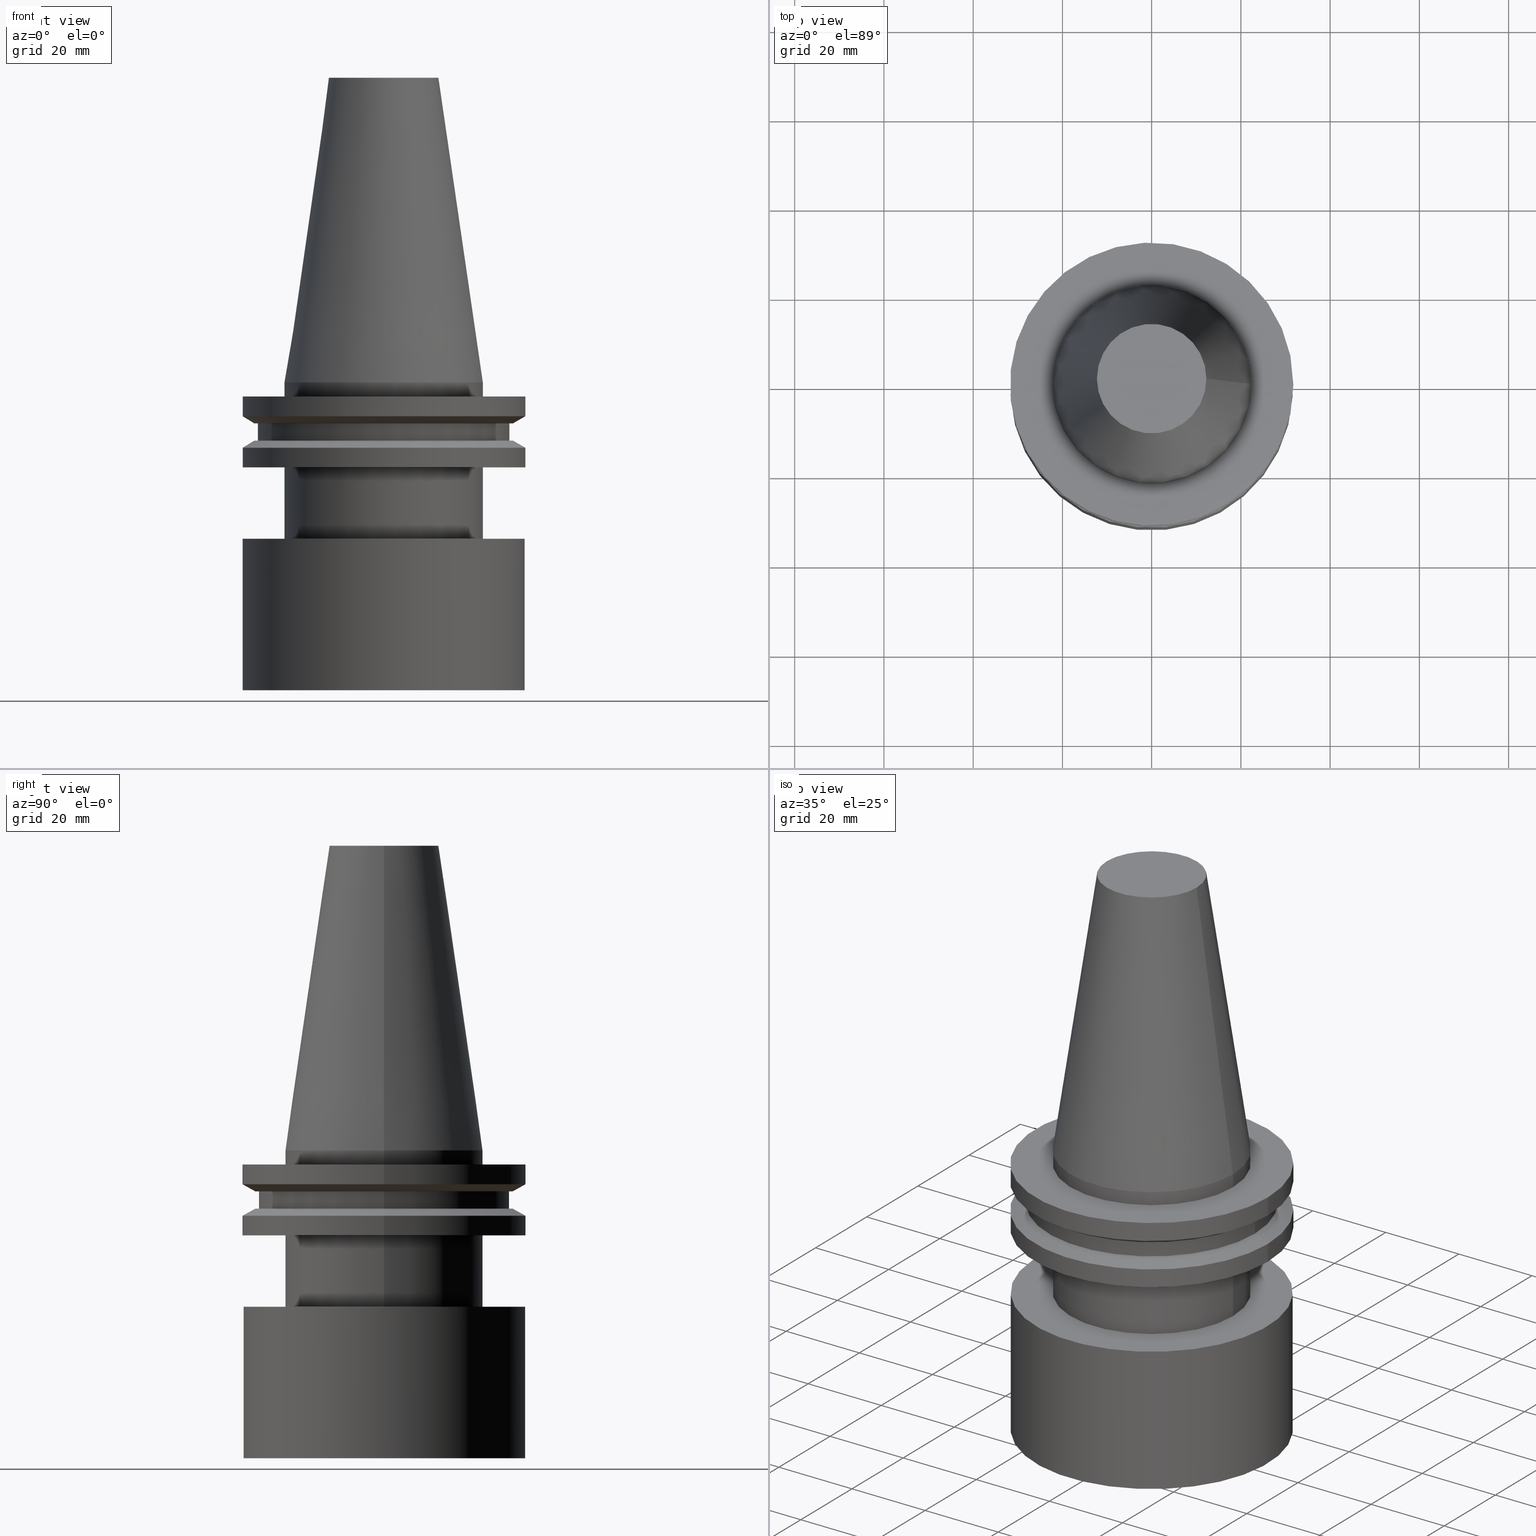
[diagram: canonical four-view strip — front | top / right | iso, engineering-drawing reading convention]
A machine part, canonical four-view strip (front | top / right | iso — engineering-drawing reading convention). The complete STEP part file that produces these views, byte-faithful:
ISO-10303-21;
HEADER;
FILE_DESCRIPTION (( 'STEP AP203' ),
    '1' );
FILE_NAME ('11.368.462.stp',
    '2022-03-09T15:13:42',
    ( '' ),
    ( '' ),
    'SwSTEP 2.0',
    'SolidWorks 2021',
    '' );
FILE_SCHEMA (( 'CONFIG_CONTROL_DESIGN' ));
ENDSEC;

DATA;
#1 = ADVANCED_FACE ( 'NONE', ( #374, #93 ), #371, .T. ) ;
#2 = CARTESIAN_POINT ( 'NONE',  ( 22.22500000000000142, 0.000000000000000000, -3.174999999999997158 ) ) ;
#3 = PERSON_AND_ORGANIZATION ( #183, #34 ) ;
#4 = ORIENTED_EDGE ( 'NONE', *, *, #39, .T. ) ;
#5 = DIRECTION ( 'NONE',  ( 1.000000000000000000, 0.000000000000000000, 0.000000000000000000 ) ) ;
#6 = APPROVAL_DATE_TIME ( #150, #163 ) ;
#7 = ORIENTED_EDGE ( 'NONE', *, *, #78, .T. ) ;
#8 = EDGE_LOOP ( 'NONE', ( #359 ) ) ;
#9 = AXIS2_PLACEMENT_3D ( 'NONE', #103, #349, #352 ) ;
#10 = ORIENTED_EDGE ( 'NONE', *, *, #289, .F. ) ;
#11 = FACE_OUTER_BOUND ( 'NONE', #192, .T. ) ;
#12 = CARTESIAN_POINT ( 'NONE',  ( 31.74999999999999289, 0.000000000000000000, -19.04999999999999716 ) ) ;
#13 = CARTESIAN_POINT ( 'NONE',  ( 0.000000000000000000, 0.000000000000000000, 68.25000000000000000 ) ) ;
#14 = CC_DESIGN_PERSON_AND_ORGANIZATION_ASSIGNMENT ( #113, #365, ( #226 ) ) ;
#15 = CARTESIAN_POINT ( 'NONE',  ( 0.000000000000000000, 0.000000000000000000, -9.204999999999991189 ) ) ;
#16 = SECURITY_CLASSIFICATION ( '', '', #65 ) ;
#17 = DIRECTION ( 'NONE',  ( -0.000000000000000000, -0.000000000000000000, 1.000000000000000000 ) ) ;
#18 = CARTESIAN_POINT ( 'NONE',  ( 0.000000000000000000, 0.000000000000000000, -9.205000000000005400 ) ) ;
#19 = CARTESIAN_POINT ( 'NONE',  ( 12.27178102086201150, 0.000000000000000000, 68.25000000000000000 ) ) ;
#20 = ORIENTED_EDGE ( 'NONE', *, *, #388, .F. ) ;
#21 = AXIS2_PLACEMENT_3D ( 'NONE', #15, #169, #70 ) ;
#22 = FACE_OUTER_BOUND ( 'NONE', #82, .T. ) ;
#23 = APPROVAL ( #117, 'UNSPECIFIED' ) ;
#24 = CARTESIAN_POINT ( 'NONE',  ( 0.000000000000000000, 0.000000000000000000, -35.04999999999999716 ) ) ;
#25 = EDGE_CURVE ( 'NONE', #129, #129, #264, .T. ) ;
#26 = FACE_BOUND ( 'NONE', #288, .T. ) ;
#27 = PERSON_AND_ORGANIZATION ( #183, #34 ) ;
#28 = AXIS2_PLACEMENT_3D ( 'NONE', #280, #395, #254 ) ;
#29 = PERSON_AND_ORGANIZATION_ROLE ( 'classification_officer' ) ;
#30 = PLANE ( 'NONE',  #124 ) ;
#31 = COORDINATED_UNIVERSAL_TIME_OFFSET ( 6, 0, .BEHIND. ) ;
#32 = EDGE_LOOP ( 'NONE', ( #151 ) ) ;
#33 = CALENDAR_DATE ( 2022, 9, 3 ) ;
#34 = ORGANIZATION ( 'UNSPECIFIED', 'UNSPECIFIED', '' ) ;
#35 = PERSON_AND_ORGANIZATION_ROLE ( 'design_supplier' ) ;
#36 = CARTESIAN_POINT ( 'NONE',  ( 0.000000000000000000, 0.000000000000000000, -3.174999999999997158 ) ) ;
#37 = CARTESIAN_POINT ( 'NONE',  ( 0.000000000000000000, -9.062386313690410430E-15, -68.99999999999998579 ) ) ;
#38 = ORIENTED_EDGE ( 'NONE', *, *, #133, .T. ) ;
#39 = EDGE_CURVE ( 'NONE', #296, #296, #325, .T. ) ;
#40 = CYLINDRICAL_SURFACE ( 'NONE', #270, 31.63500000000000867 ) ;
#41 = VERTEX_POINT ( 'NONE', #162 ) ;
#42 = LOCAL_TIME ( 9, 13, 42.00000000000000000, #224 ) ;
#43 = DIRECTION ( 'NONE',  ( -0.000000000000000000, -0.000000000000000000, 1.000000000000000000 ) ) ;
#44 = EDGE_CURVE ( 'NONE', #46, #46, #107, .T. ) ;
#45 = FACE_OUTER_BOUND ( 'NONE', #8, .T. ) ;
#46 = VERTEX_POINT ( 'NONE', #385 ) ;
#47 = FACE_BOUND ( 'NONE', #303, .T. ) ;
#48 = CARTESIAN_POINT ( 'NONE',  ( 22.22500000000000142, 0.000000000000000000, 0.000000000000000000 ) ) ;
#49 = CC_DESIGN_PERSON_AND_ORGANIZATION_ASSIGNMENT ( #378, #373, ( #394 ) ) ;
#50 = CARTESIAN_POINT ( 'NONE',  ( 0.000000000000000000, 1.127050637003671691E-30, -35.04999999999999005 ) ) ;
#51 = LOCAL_TIME ( 9, 13, 42.00000000000000000, #31 ) ;
#52 = DIRECTION ( 'NONE',  ( -0.000000000000000000, -0.000000000000000000, 1.000000000000000000 ) ) ;
#53 = EDGE_CURVE ( 'NONE', #102, #102, #335, .T. ) ;
#54 = CARTESIAN_POINT ( 'NONE',  ( 0.000000000000000000, 28.97919780457007732, -9.204999999999996518 ) ) ;
#55 = ORIENTED_EDGE ( 'NONE', *, *, #388, .T. ) ;
#56 = CONICAL_SURFACE ( 'NONE', #9, 31.75000000000000000, 1.047197551196597853 ) ;
#57 = ADVANCED_FACE ( 'NONE', ( #234, #345 ), #386, .F. ) ;
#58 = ORIENTED_EDGE ( 'NONE', *, *, #240, .F. ) ;
#59 = DATE_AND_TIME ( #156, #329 ) ;
#60 = DIRECTION ( 'NONE',  ( -1.000000000000000000, 0.000000000000000000, 0.000000000000000000 ) ) ;
#61 = APPROVAL_ROLE ( '' ) ;
#62 = ORIENTED_EDGE ( 'NONE', *, *, #370, .T. ) ;
#63 = AXIS2_PLACEMENT_3D ( 'NONE', #18, #244, #219 ) ;
#64 = ADVANCED_FACE ( 'NONE', ( #11, #130 ), #164, .T. ) ;
#65 = SECURITY_CLASSIFICATION_LEVEL ( 'unclassified' ) ;
#66 = EDGE_LOOP ( 'NONE', ( #58 ) ) ;
#67 = MANIFOLD_SOLID_BREP ( 'CKB', #92 ) ;
#68 = CARTESIAN_POINT ( 'NONE',  ( 0.000000000000000000, 0.000000000000000000, -19.04999999999999716 ) ) ;
#69 = AXIS2_PLACEMENT_3D ( 'NONE', #216, #80, #115 ) ;
#70 = DIRECTION ( 'NONE',  ( 1.000000000000000000, 0.000000000000000000, 0.000000000000000000 ) ) ;
#71 = DIRECTION ( 'NONE',  ( 0.000000000000000000, 0.000000000000000000, -1.000000000000000000 ) ) ;
#72 = VERTEX_POINT ( 'NONE', #100 ) ;
#73 = FACE_OUTER_BOUND ( 'NONE', #125, .T. ) ;
#74 = DIRECTION ( 'NONE',  ( -0.000000000000000000, -0.000000000000000000, 1.000000000000000000 ) ) ;
#75 = CIRCLE ( 'NONE', #69, 22.22500000000000142 ) ;
#76 = AXIS2_PLACEMENT_3D ( 'NONE', #37, #121, #259 ) ;
#77 = DIRECTION ( 'NONE',  ( 1.000000000000000000, 0.000000000000000000, 0.000000000000000000 ) ) ;
#78 = EDGE_CURVE ( 'NONE', #350, #350, #281, .T. ) ;
#79 = DIRECTION ( 'NONE',  ( 0.000000000000000000, -1.000000000000000000, 2.669333229363891004E-16 ) ) ;
#80 = DIRECTION ( 'NONE',  ( -0.000000000000000000, -0.000000000000000000, 1.000000000000000000 ) ) ;
#81 = APPLICATION_PROTOCOL_DEFINITION ( 'international standard', 'config_control_design', 1994, #131 ) ;
#82 = EDGE_LOOP ( 'NONE', ( #225 ) ) ;
#83 = DIRECTION ( 'NONE',  ( -0.000000000000000000, -0.000000000000000000, 1.000000000000000000 ) ) ;
#84 = VERTEX_POINT ( 'NONE', #48 ) ;
#85 = CARTESIAN_POINT ( 'NONE',  ( 0.000000000000000000, 28.17999999999999972, -13.05499999999999794 ) ) ;
#86 = APPLICATION_PROTOCOL_DEFINITION ( 'international standard', 'config_control_design', 1994, #232 ) ;
#87 = PLANE ( 'NONE',  #250 ) ;
#88 = VERTEX_POINT ( 'NONE', #327 ) ;
#89 = ORIENTED_EDGE ( 'NONE', *, *, #116, .T. ) ;
#90 = ADVANCED_FACE ( 'NONE', ( #207, #238 ), #56, .T. ) ;
#91 = ORIENTED_EDGE ( 'NONE', *, *, #116, .F. ) ;
#92 = CLOSED_SHELL ( 'NONE', ( #1, #263, #209, #367, #154, #90, #283, #353, #247, #126, #346, #57, #64, #241, #147, #158 ) ) ;
#93 = FACE_OUTER_BOUND ( 'NONE', #291, .T. ) ;
#94 = EDGE_LOOP ( 'NONE', ( #313 ) ) ;
#95 = COORDINATED_UNIVERSAL_TIME_OFFSET ( 6, 0, .BEHIND. ) ;
#96 = EDGE_LOOP ( 'NONE', ( #4 ) ) ;
#97 = AXIS2_PLACEMENT_3D ( 'NONE', #382, #368, #112 ) ;
#98 = APPROVAL_STATUS ( 'not_yet_approved' ) ;
#99 = DIRECTION ( 'NONE',  ( -0.000000000000000000, -0.000000000000000000, 1.000000000000000000 ) ) ;
#100 = CARTESIAN_POINT ( 'NONE',  ( 28.17999999999999972, 0.000000000000000000, -9.204999999999991189 ) ) ;
#101 = AXIS2_PLACEMENT_3D ( 'NONE', #24, #175, #391 ) ;
#102 = VERTEX_POINT ( 'NONE', #172 ) ;
#103 = CARTESIAN_POINT ( 'NONE',  ( 0.000000000000000000, 0.000000000000000000, -14.65472339340266572 ) ) ;
#104 = EDGE_CURVE ( 'NONE', #266, #266, #146, .T. ) ;
#105 = CARTESIAN_POINT ( 'NONE',  ( 0.000000000000000000, 0.000000000000000000, -9.205000000000005400 ) ) ;
#106 = AXIS2_PLACEMENT_3D ( 'NONE', #54, #173, #305 ) ;
#107 = CIRCLE ( 'NONE', #76, 31.63500000000000867 ) ;
#108 = VERTEX_POINT ( 'NONE', #19 ) ;
#109 = FACE_OUTER_BOUND ( 'NONE', #369, .T. ) ;
#110 = DIRECTION ( 'NONE',  ( 0.000000000000000000, 1.000000000000000000, -2.193423076942382468E-16 ) ) ;
#111 = CARTESIAN_POINT ( 'NONE',  ( 0.000000000000000000, 0.000000000000000000, 0.000000000000000000 ) ) ;
#112 = DIRECTION ( 'NONE',  ( 0.000000000000000000, 1.000000000000000000, -2.669333229363891004E-16 ) ) ;
#113 = PERSON_AND_ORGANIZATION ( #183, #34 ) ;
#114 = EDGE_LOOP ( 'NONE', ( #285 ) ) ;
#115 = DIRECTION ( 'NONE',  ( 1.000000000000000000, 0.000000000000000000, 0.000000000000000000 ) ) ;
#116 = EDGE_CURVE ( 'NONE', #322, #322, #390, .T. ) ;
#117 = APPROVAL_STATUS ( 'not_yet_approved' ) ;
#118 = ORIENTED_EDGE ( 'NONE', *, *, #203, .T. ) ;
#119 = APPROVAL_PERSON_ORGANIZATION ( #27, #223, #144 ) ;
#120 = PERSON_AND_ORGANIZATION ( #183, #34 ) ;
#121 = DIRECTION ( 'NONE',  ( -0.000000000000000000, -2.669333229363891004E-16, -1.000000000000000000 ) ) ;
#122 = EDGE_LOOP ( 'NONE', ( #91 ) ) ;
#123 = EDGE_LOOP ( 'NONE', ( #62 ) ) ;
#124 = AXIS2_PLACEMENT_3D ( 'NONE', #237, #165, #204 ) ;
#125 = EDGE_LOOP ( 'NONE', ( #337 ) ) ;
#126 = ADVANCED_FACE ( 'NONE', ( #383, #171 ), #320, .T. ) ;
#127 = FACE_OUTER_BOUND ( 'NONE', #185, .T. ) ;
#128 = CARTESIAN_POINT ( 'NONE',  ( 0.000000000000000000, 0.000000000000000000, -19.04999999999999716 ) ) ;
#129 = VERTEX_POINT ( 'NONE', #208 ) ;
#130 = FACE_OUTER_BOUND ( 'NONE', #123, .T. ) ;
#131 = APPLICATION_CONTEXT ( 'configuration controlled 3d designs of mechanical parts and assemblies' ) ;
#132 = DIRECTION ( 'NONE',  ( 0.000000000000000000, 1.000000000000000000, -4.386846153884764444E-16 ) ) ;
#133 = EDGE_CURVE ( 'NONE', #72, #72, #275, .T. ) ;
#134 = CARTESIAN_POINT ( 'NONE',  ( 28.17999999999999972, 0.000000000000000000, -13.05499999999999794 ) ) ;
#135 = FACE_OUTER_BOUND ( 'NONE', #122, .T. ) ;
#136 =( NAMED_UNIT ( * ) PLANE_ANGLE_UNIT ( ) SI_UNIT ( $, .RADIAN. ) );
#137 = CARTESIAN_POINT ( 'NONE',  ( 0.000000000000000000, 12.27178102086201150, 68.25000000000000000 ) ) ;
#138 = AXIS2_PLACEMENT_3D ( 'NONE', #137, #364, #358 ) ;
#139 = ORIENTED_EDGE ( 'NONE', *, *, #104, .T. ) ;
#140 = CARTESIAN_POINT ( 'NONE',  ( 0.000000000000000000, 0.000000000000000000, 68.25000000000000000 ) ) ;
#141 = FACE_OUTER_BOUND ( 'NONE', #94, .T. ) ;
#142 = EDGE_LOOP ( 'NONE', ( #139 ) ) ;
#143 = FACE_OUTER_BOUND ( 'NONE', #155, .T. ) ;
#144 = APPROVAL_ROLE ( '' ) ;
#145 = APPROVAL_PERSON_ORGANIZATION ( #187, #163, #284 ) ;
#146 = CIRCLE ( 'NONE', #293, 31.74999999999999289 ) ;
#147 = ADVANCED_FACE ( 'NONE', ( #45, #73 ), #40, .T. ) ;
#148 = DIRECTION ( 'NONE',  ( 1.000000000000000000, 0.000000000000000000, 0.000000000000000000 ) ) ;
#149 = CALENDAR_DATE ( 2022, 9, 3 ) ;
#150 = DATE_AND_TIME ( #341, #51 ) ;
#151 = ORIENTED_EDGE ( 'NONE', *, *, #289, .T. ) ;
#152 = SHAPE_DEFINITION_REPRESENTATION ( #351, #235 ) ;
#153 = DIRECTION ( 'NONE',  ( 1.000000000000000000, 0.000000000000000000, 0.000000000000000000 ) ) ;
#154 = ADVANCED_FACE ( 'NONE', ( #135, #272 ), #242, .T. ) ;
#155 = EDGE_LOOP ( 'NONE', ( #227 ) ) ;
#156 = CALENDAR_DATE ( 2022, 9, 3 ) ;
#157 = DIRECTION ( 'NONE',  ( -0.000000000000000000, -0.000000000000000000, 1.000000000000000000 ) ) ;
#158 = ADVANCED_FACE ( 'NONE', ( #127 ), #267, .T. ) ;
#159 = EDGE_LOOP ( 'NONE', ( #342 ) ) ;
#160 = LOCAL_TIME ( 9, 13, 42.00000000000000000, #228 ) ;
#161 = CARTESIAN_POINT ( 'NONE',  ( 0.000000000000000000, 0.000000000000000000, 68.25000000000000000 ) ) ;
#162 = CARTESIAN_POINT ( 'NONE',  ( 0.000000000000000000, 31.63500000000000512, -35.04999999999999716 ) ) ;
#163 = APPROVAL ( #98, 'UNSPECIFIED' ) ;
#164 = CYLINDRICAL_SURFACE ( 'NONE', #231, 22.22500000000000142 ) ;
#165 = DIRECTION ( 'NONE',  ( 0.000000000000000000, -0.000000000000000000, 1.000000000000000000 ) ) ;
#166 = DIRECTION ( 'NONE',  ( -0.000000000000000000, -0.000000000000000000, 1.000000000000000000 ) ) ;
#167 = CC_DESIGN_APPROVAL ( #223, ( #282 ) ) ;
#168 = AXIS2_PLACEMENT_3D ( 'NONE', #286, #99, #5 ) ;
#169 = DIRECTION ( 'NONE',  ( -0.000000000000000000, -0.000000000000000000, 1.000000000000000000 ) ) ;
#170 = CARTESIAN_POINT ( 'NONE',  ( 0.000000000000000000, 0.000000000000000000, -3.174999999999997158 ) ) ;
#171 = FACE_BOUND ( 'NONE', #380, .T. ) ;
#172 = CARTESIAN_POINT ( 'NONE',  ( 31.75000000000000000, 0.000000000000000000, -3.174999999999997158 ) ) ;
#173 = DIRECTION ( 'NONE',  ( 0.000000000000000000, -0.000000000000000000, 1.000000000000000000 ) ) ;
#174 = AXIS2_PLACEMENT_3D ( 'NONE', #355, #17, #77 ) ;
#175 = DIRECTION ( 'NONE',  ( -0.000000000000000000, -0.000000000000000000, 1.000000000000000000 ) ) ;
#176 = PLANE ( 'NONE',  #138 ) ;
#177 = ORIENTED_EDGE ( 'NONE', *, *, #25, .T. ) ;
#178 = PLANE ( 'NONE',  #106 ) ;
#179 = VERTEX_POINT ( 'NONE', #2 ) ;
#180 = APPROVAL_PERSON_ORGANIZATION ( #120, #23, #61 ) ;
#181 = AXIS2_PLACEMENT_3D ( 'NONE', #128, #74, #239 ) ;
#182 = FACE_OUTER_BOUND ( 'NONE', #246, .T. ) ;
#183 = PERSON ( 'UNSPECIFIED', 'UNSPECIFIED', 'UNSPECIFIED', ('UNSPECIFIED'), ('UNSPECIFIED'), ('UNSPECIFIED') ) ;
#184 = DATE_AND_TIME ( #149, #160 ) ;
#185 = EDGE_LOOP ( 'NONE', ( #311 ) ) ;
#186 = CC_DESIGN_PERSON_AND_ORGANIZATION_ASSIGNMENT ( #338, #310, ( #282 ) ) ;
#187 = PERSON_AND_ORGANIZATION ( #183, #34 ) ;
#188 = CARTESIAN_POINT ( 'NONE',  ( 0.000000000000000000, 0.000000000000000000, -13.05499999999999794 ) ) ;
#189 = DATE_AND_TIME ( #33, #42 ) ;
#190 = ORIENTED_EDGE ( 'NONE', *, *, #317, .F. ) ;
#191 =( GEOMETRIC_REPRESENTATION_CONTEXT ( 3 ) GLOBAL_UNCERTAINTY_ASSIGNED_CONTEXT ( ( #193 ) ) GLOBAL_UNIT_ASSIGNED_CONTEXT ( ( #217, #136, #302 ) ) REPRESENTATION_CONTEXT ( 'NONE', 'WORKASPACE' ) );
#192 = EDGE_LOOP ( 'NONE', ( #190 ) ) ;
#193 = UNCERTAINTY_MEASURE_WITH_UNIT (LENGTH_MEASURE( 1.000000000000000082E-05 ), #217, 'distance_accuracy_value', 'NONE');
#194 = DATE_TIME_ROLE ( 'classification_date' ) ;
#195 = EDGE_LOOP ( 'NONE', ( #316 ) ) ;
#196 = DIRECTION ( 'NONE',  ( -0.000000000000000000, -0.000000000000000000, 1.000000000000000000 ) ) ;
#197 = VERTEX_POINT ( 'NONE', #319 ) ;
#198 = CIRCLE ( 'NONE', #297, 31.63500000000000512 ) ;
#199 = AXIS2_PLACEMENT_3D ( 'NONE', #105, #318, #323 ) ;
#200 = DIRECTION ( 'NONE',  ( -0.000000000000000000, -0.000000000000000000, 1.000000000000000000 ) ) ;
#201 = DIRECTION ( 'NONE',  ( 1.000000000000000000, 0.000000000000000000, 0.000000000000000000 ) ) ;
#202 = CARTESIAN_POINT ( 'NONE',  ( 0.000000000000000000, 0.000000000000000000, -14.65472339340266572 ) ) ;
#203 = EDGE_CURVE ( 'NONE', #197, #197, #334, .T. ) ;
#204 = DIRECTION ( 'NONE',  ( 1.000000000000000000, 0.000000000000000000, 0.000000000000000000 ) ) ;
#205 = AXIS2_PLACEMENT_3D ( 'NONE', #279, #326, #148 ) ;
#206 = AXIS2_PLACEMENT_3D ( 'NONE', #36, #157, #290 ) ;
#207 = FACE_BOUND ( 'NONE', #114, .T. ) ;
#208 = CARTESIAN_POINT ( 'NONE',  ( 28.97919780457008088, 0.000000000000000000, -13.05499999999999794 ) ) ;
#209 = ADVANCED_FACE ( 'NONE', ( #251, #277 ), #333, .T. ) ;
#210 = DIRECTION ( 'NONE',  ( 1.000000000000000000, 0.000000000000000000, 0.000000000000000000 ) ) ;
#211 = EDGE_LOOP ( 'NONE', ( #7 ) ) ;
#212 = PRODUCT_RELATED_PRODUCT_CATEGORY ( 'detail', '', ( #226 ) ) ;
#213 = FACE_OUTER_BOUND ( 'NONE', #96, .T. ) ;
#214 = CIRCLE ( 'NONE', #101, 22.22499999999999787 ) ;
#215 = MECHANICAL_CONTEXT ( 'NONE', #131, 'mechanical' ) ;
#216 = CARTESIAN_POINT ( 'NONE',  ( 0.000000000000000000, 0.000000000000000000, 0.000000000000000000 ) ) ;
#217 =( LENGTH_UNIT ( ) NAMED_UNIT ( * ) SI_UNIT ( .MILLI., .METRE. ) );
#218 = EDGE_LOOP ( 'NONE', ( #10 ) ) ;
#219 = DIRECTION ( 'NONE',  ( 1.000000000000000000, 0.000000000000000000, 0.000000000000000000 ) ) ;
#220 = CC_DESIGN_SECURITY_CLASSIFICATION ( #16, ( #394 ) ) ;
#221 = ORIENTED_EDGE ( 'NONE', *, *, #78, .F. ) ;
#222 = AXIS2_PLACEMENT_3D ( 'NONE', #202, #196, #347 ) ;
#223 = APPROVAL ( #332, 'UNSPECIFIED' ) ;
#224 = COORDINATED_UNIVERSAL_TIME_OFFSET ( 6, 0, .BEHIND. ) ;
#225 = ORIENTED_EDGE ( 'NONE', *, *, #278, .T. ) ;
#226 = PRODUCT ( '11.368.462', '11.368.462', '', ( #215 ) ) ;
#227 = ORIENTED_EDGE ( 'NONE', *, *, #133, .F. ) ;
#228 = COORDINATED_UNIVERSAL_TIME_OFFSET ( 6, 0, .BEHIND. ) ;
#229 = EDGE_LOOP ( 'NONE', ( #55 ) ) ;
#230 = AXIS2_PLACEMENT_3D ( 'NONE', #161, #273, #294 ) ;
#231 = AXIS2_PLACEMENT_3D ( 'NONE', #13, #200, #271 ) ;
#232 = APPLICATION_CONTEXT ( 'configuration controlled 3d designs of mechanical parts and assemblies' ) ;
#233 = DATE_TIME_ROLE ( 'creation_date' ) ;
#234 = FACE_BOUND ( 'NONE', #159, .T. ) ;
#235 = ADVANCED_BREP_SHAPE_REPRESENTATION ( '11.368.462', ( #67, #377 ), #191 ) ;
#236 = CARTESIAN_POINT ( 'NONE',  ( 0.000000000000000000, 31.75000000000000000, -3.174999999999999378 ) ) ;
#237 = CARTESIAN_POINT ( 'NONE',  ( 0.000000000000000000, 31.74999999999999289, -19.04999999999999716 ) ) ;
#238 = FACE_OUTER_BOUND ( 'NONE', #258, .T. ) ;
#239 = DIRECTION ( 'NONE',  ( 1.000000000000000000, 0.000000000000000000, 0.000000000000000000 ) ) ;
#240 = EDGE_CURVE ( 'NONE', #41, #41, #198, .T. ) ;
#241 = ADVANCED_FACE ( 'NONE', ( #393, #328 ), #307, .T. ) ;
#242 = CYLINDRICAL_SURFACE ( 'NONE', #230, 31.75000000000000000 ) ;
#243 = AXIS2_PLACEMENT_3D ( 'NONE', #188, #262, #153 ) ;
#244 = DIRECTION ( 'NONE',  ( -0.000000000000000000, -0.000000000000000000, 1.000000000000000000 ) ) ;
#245 = DIRECTION ( 'NONE',  ( 0.000000000000000000, 2.669333229363891004E-16, 1.000000000000000000 ) ) ;
#246 = EDGE_LOOP ( 'NONE', ( #339 ) ) ;
#247 = ADVANCED_FACE ( 'NONE', ( #109, #26 ), #178, .F. ) ;
#248 = FACE_OUTER_BOUND ( 'NONE', #229, .T. ) ;
#249 = DIRECTION ( 'NONE',  ( 0.000000000000000000, 0.000000000000000000, 1.000000000000000000 ) ) ;
#250 = AXIS2_PLACEMENT_3D ( 'NONE', #85, #330, #276 ) ;
#251 = FACE_OUTER_BOUND ( 'NONE', #379, .T. ) ;
#252 = AXIS2_PLACEMENT_3D ( 'NONE', #140, #83, #331 ) ;
#253 = ORIENTED_EDGE ( 'NONE', *, *, #317, .T. ) ;
#254 = DIRECTION ( 'NONE',  ( 1.000000000000000000, 0.000000000000000000, 0.000000000000000000 ) ) ;
#255 = CARTESIAN_POINT ( 'NONE',  ( 31.75000000000000000, 0.000000000000000000, -7.605276606597335842 ) ) ;
#256 = APPROVAL_DATE_TIME ( #189, #23 ) ;
#257 = PERSON_AND_ORGANIZATION ( #183, #34 ) ;
#258 = EDGE_LOOP ( 'NONE', ( #89 ) ) ;
#259 = DIRECTION ( 'NONE',  ( 0.000000000000000000, 1.000000000000000000, -4.386846153884764444E-16 ) ) ;
#260 = ORIENTED_EDGE ( 'NONE', *, *, #39, .F. ) ;
#261 = CALENDAR_DATE ( 2022, 9, 3 ) ;
#262 = DIRECTION ( 'NONE',  ( -0.000000000000000000, -0.000000000000000000, 1.000000000000000000 ) ) ;
#263 = ADVANCED_FACE ( 'NONE', ( #248 ), #176, .F. ) ;
#264 = CIRCLE ( 'NONE', #243, 28.97919780457008088 ) ;
#265 = EDGE_LOOP ( 'NONE', ( #177 ) ) ;
#266 = VERTEX_POINT ( 'NONE', #12 ) ;
#267 = PLANE ( 'NONE',  #97 ) ;
#268 = VERTEX_POINT ( 'NONE', #255 ) ;
#269 = DIRECTION ( 'NONE',  ( 1.000000000000000000, 0.000000000000000000, 0.000000000000000000 ) ) ;
#270 = AXIS2_PLACEMENT_3D ( 'NONE', #354, #324, #132 ) ;
#271 = DIRECTION ( 'NONE',  ( 1.000000000000000000, 0.000000000000000000, 0.000000000000000000 ) ) ;
#272 = FACE_OUTER_BOUND ( 'NONE', #142, .T. ) ;
#273 = DIRECTION ( 'NONE',  ( -0.000000000000000000, -0.000000000000000000, 1.000000000000000000 ) ) ;
#274 = AXIS2_PLACEMENT_3D ( 'NONE', #357, #52, #210 ) ;
#275 = CIRCLE ( 'NONE', #21, 28.17999999999999972 ) ;
#276 = DIRECTION ( 'NONE',  ( -1.000000000000000000, 0.000000000000000000, -0.000000000000000000 ) ) ;
#277 = FACE_OUTER_BOUND ( 'NONE', #32, .T. ) ;
#278 = EDGE_CURVE ( 'NONE', #268, #268, #363, .T. ) ;
#279 = CARTESIAN_POINT ( 'NONE',  ( 0.000000000000000000, 0.000000000000000000, -7.605276606597335842 ) ) ;
#280 = CARTESIAN_POINT ( 'NONE',  ( 0.000000000000000000, 0.000000000000000000, 68.25000000000000000 ) ) ;
#281 = CIRCLE ( 'NONE', #181, 22.22500000000000142 ) ;
#282 = PRODUCT_DEFINITION ( 'UNKNOWN', '', #394, #340 ) ;
#283 = ADVANCED_FACE ( 'NONE', ( #47, #301 ), #87, .F. ) ;
#284 = APPROVAL_ROLE ( '' ) ;
#285 = ORIENTED_EDGE ( 'NONE', *, *, #25, .F. ) ;
#286 = CARTESIAN_POINT ( 'NONE',  ( 0.000000000000000000, 0.000000000000000000, -13.05499999999999794 ) ) ;
#287 = COORDINATED_UNIVERSAL_TIME_OFFSET ( 6, 0, .BEHIND. ) ;
#288 = EDGE_LOOP ( 'NONE', ( #38 ) ) ;
#289 = EDGE_CURVE ( 'NONE', #88, #88, #214, .T. ) ;
#290 = DIRECTION ( 'NONE',  ( 1.000000000000000000, 0.000000000000000000, 0.000000000000000000 ) ) ;
#291 = EDGE_LOOP ( 'NONE', ( #253 ) ) ;
#292 = CC_DESIGN_APPROVAL ( #23, ( #16 ) ) ;
#293 = AXIS2_PLACEMENT_3D ( 'NONE', #68, #166, #269 ) ;
#294 = DIRECTION ( 'NONE',  ( 1.000000000000000000, 0.000000000000000000, 0.000000000000000000 ) ) ;
#295 = CC_DESIGN_DATE_AND_TIME_ASSIGNMENT ( #59, #194, ( #16 ) ) ;
#296 = VERTEX_POINT ( 'NONE', #134 ) ;
#297 = AXIS2_PLACEMENT_3D ( 'NONE', #392, #387, #110 ) ;
#298 = AXIS2_PLACEMENT_3D ( 'NONE', #344, #372, #60 ) ;
#299 = CARTESIAN_POINT ( 'NONE',  ( 22.22500000000000142, 0.000000000000000000, -19.04999999999999716 ) ) ;
#300 = CC_DESIGN_DATE_AND_TIME_ASSIGNMENT ( #312, #233, ( #282 ) ) ;
#301 = FACE_OUTER_BOUND ( 'NONE', #265, .T. ) ;
#302 =( NAMED_UNIT ( * ) SI_UNIT ( $, .STERADIAN. ) SOLID_ANGLE_UNIT ( ) );
#303 = EDGE_LOOP ( 'NONE', ( #260 ) ) ;
#304 = AXIS2_PLACEMENT_3D ( 'NONE', #170, #43, #201 ) ;
#305 = DIRECTION ( 'NONE',  ( 1.000000000000000000, 0.000000000000000000, 0.000000000000000000 ) ) ;
#306 = CYLINDRICAL_SURFACE ( 'NONE', #28, 28.17999999999999972 ) ;
#307 = PLANE ( 'NONE',  #389 ) ;
#308 = AXIS2_PLACEMENT_3D ( 'NONE', #236, #71, #321 ) ;
#309 = FACE_BOUND ( 'NONE', #211, .T. ) ;
#310 = PERSON_AND_ORGANIZATION_ROLE ( 'creator' ) ;
#311 = ORIENTED_EDGE ( 'NONE', *, *, #44, .T. ) ;
#312 = DATE_AND_TIME ( #261, #384 ) ;
#313 = ORIENTED_EDGE ( 'NONE', *, *, #53, .F. ) ;
#314 = EDGE_LOOP ( 'NONE', ( #20 ) ) ;
#315 = ORIENTED_EDGE ( 'NONE', *, *, #203, .F. ) ;
#316 = ORIENTED_EDGE ( 'NONE', *, *, #53, .T. ) ;
#317 = EDGE_CURVE ( 'NONE', #84, #84, #75, .T. ) ;
#318 = DIRECTION ( 'NONE',  ( -0.000000000000000000, -0.000000000000000000, 1.000000000000000000 ) ) ;
#319 = CARTESIAN_POINT ( 'NONE',  ( 28.97919780457007732, 0.000000000000000000, -9.205000000000005400 ) ) ;
#320 = CONICAL_SURFACE ( 'NONE', #199, 28.97919780457007732, 1.047197551196598297 ) ;
#321 = DIRECTION ( 'NONE',  ( -1.000000000000000000, 0.000000000000000000, -0.000000000000000000 ) ) ;
#322 = VERTEX_POINT ( 'NONE', #381 ) ;
#323 = DIRECTION ( 'NONE',  ( 1.000000000000000000, 0.000000000000000000, 0.000000000000000000 ) ) ;
#324 = DIRECTION ( 'NONE',  ( -0.000000000000000000, -2.669333229363891004E-16, -1.000000000000000000 ) ) ;
#325 = CIRCLE ( 'NONE', #168, 28.17999999999999972 ) ;
#326 = DIRECTION ( 'NONE',  ( -0.000000000000000000, -0.000000000000000000, 1.000000000000000000 ) ) ;
#327 = CARTESIAN_POINT ( 'NONE',  ( 22.22499999999999787, 0.000000000000000000, -35.04999999999999716 ) ) ;
#328 = FACE_OUTER_BOUND ( 'NONE', #66, .T. ) ;
#329 = LOCAL_TIME ( 9, 13, 42.00000000000000000, #95 ) ;
#330 = DIRECTION ( 'NONE',  ( 0.000000000000000000, 0.000000000000000000, -1.000000000000000000 ) ) ;
#331 = DIRECTION ( 'NONE',  ( 1.000000000000000000, 0.000000000000000000, 0.000000000000000000 ) ) ;
#332 = APPROVAL_STATUS ( 'not_yet_approved' ) ;
#333 = CYLINDRICAL_SURFACE ( 'NONE', #274, 22.22500000000000142 ) ;
#334 = CIRCLE ( 'NONE', #63, 28.97919780457007732 ) ;
#335 = CIRCLE ( 'NONE', #206, 31.75000000000000000 ) ;
#336 = APPROVAL_DATE_TIME ( #184, #223 ) ;
#337 = ORIENTED_EDGE ( 'NONE', *, *, #44, .F. ) ;
#338 = PERSON_AND_ORGANIZATION ( #183, #34 ) ;
#339 = ORIENTED_EDGE ( 'NONE', *, *, #104, .F. ) ;
#340 = DESIGN_CONTEXT ( 'detailed design', #232, 'design' ) ;
#341 = CALENDAR_DATE ( 2022, 9, 3 ) ;
#342 = ORIENTED_EDGE ( 'NONE', *, *, #370, .F. ) ;
#343 = CIRCLE ( 'NONE', #304, 22.22500000000000142 ) ;
#344 = CARTESIAN_POINT ( 'NONE',  ( 0.000000000000000000, 0.000000000000000000, 0.000000000000000000 ) ) ;
#345 = FACE_OUTER_BOUND ( 'NONE', #195, .T. ) ;
#346 = ADVANCED_FACE ( 'NONE', ( #141, #22 ), #360, .T. ) ;
#347 = DIRECTION ( 'NONE',  ( 1.000000000000000000, 0.000000000000000000, 0.000000000000000000 ) ) ;
#348 = CC_DESIGN_APPROVAL ( #163, ( #394 ) ) ;
#349 = DIRECTION ( 'NONE',  ( 0.000000000000000000, 0.000000000000000000, -1.000000000000000000 ) ) ;
#350 = VERTEX_POINT ( 'NONE', #299 ) ;
#351 = PRODUCT_DEFINITION_SHAPE ( 'NONE', 'NONE',  #282 ) ;
#352 = DIRECTION ( 'NONE',  ( -1.000000000000000000, 0.000000000000000000, 0.000000000000000000 ) ) ;
#353 = ADVANCED_FACE ( 'NONE', ( #143, #213 ), #306, .T. ) ;
#354 = CARTESIAN_POINT ( 'NONE',  ( 0.000000000000000000, -9.062386313690412007E-15, -69.00000000000000000 ) ) ;
#355 = CARTESIAN_POINT ( 'NONE',  ( 0.000000000000000000, 0.000000000000000000, 68.25000000000000000 ) ) ;
#356 = CIRCLE ( 'NONE', #174, 12.27178102086201150 ) ;
#357 = CARTESIAN_POINT ( 'NONE',  ( 0.000000000000000000, 0.000000000000000000, 68.25000000000000000 ) ) ;
#358 = DIRECTION ( 'NONE',  ( -1.000000000000000000, 0.000000000000000000, -0.000000000000000000 ) ) ;
#359 = ORIENTED_EDGE ( 'NONE', *, *, #240, .T. ) ;
#360 = CYLINDRICAL_SURFACE ( 'NONE', #252, 31.75000000000000000 ) ;
#361 = DIRECTION ( 'NONE',  ( 1.000000000000000000, 0.000000000000000000, 0.000000000000000000 ) ) ;
#362 = CC_DESIGN_PERSON_AND_ORGANIZATION_ASSIGNMENT ( #3, #29, ( #16 ) ) ;
#363 = CIRCLE ( 'NONE', #205, 31.75000000000000000 ) ;
#364 = DIRECTION ( 'NONE',  ( 0.000000000000000000, 0.000000000000000000, -1.000000000000000000 ) ) ;
#365 = PERSON_AND_ORGANIZATION_ROLE ( 'design_owner' ) ;
#366 = EDGE_LOOP ( 'NONE', ( #375 ) ) ;
#367 = ADVANCED_FACE ( 'NONE', ( #182, #309 ), #30, .F. ) ;
#368 = DIRECTION ( 'NONE',  ( 0.000000000000000000, -2.669333229363891004E-16, -1.000000000000000000 ) ) ;
#369 = EDGE_LOOP ( 'NONE', ( #315 ) ) ;
#370 = EDGE_CURVE ( 'NONE', #179, #179, #343, .T. ) ;
#371 = CONICAL_SURFACE ( 'NONE', #298, 22.22500000000000142, 0.1448138465474119174 ) ;
#372 = DIRECTION ( 'NONE',  ( 0.000000000000000000, 0.000000000000000000, -1.000000000000000000 ) ) ;
#373 = PERSON_AND_ORGANIZATION_ROLE ( 'creator' ) ;
#374 = FACE_BOUND ( 'NONE', #314, .T. ) ;
#375 = ORIENTED_EDGE ( 'NONE', *, *, #278, .F. ) ;
#376 = CC_DESIGN_PERSON_AND_ORGANIZATION_ASSIGNMENT ( #257, #35, ( #394 ) ) ;
#377 = AXIS2_PLACEMENT_3D ( 'NONE', #111, #249, #361 ) ;
#378 = PERSON_AND_ORGANIZATION ( #183, #34 ) ;
#379 = EDGE_LOOP ( 'NONE', ( #221 ) ) ;
#380 = EDGE_LOOP ( 'NONE', ( #118 ) ) ;
#381 = CARTESIAN_POINT ( 'NONE',  ( 31.75000000000000000, 0.000000000000000000, -14.65472339340266572 ) ) ;
#382 = CARTESIAN_POINT ( 'NONE',  ( 0.000000000000000000, 31.63500000000000512, -69.00000000000000000 ) ) ;
#383 = FACE_OUTER_BOUND ( 'NONE', #366, .T. ) ;
#384 = LOCAL_TIME ( 9, 13, 42.00000000000000000, #287 ) ;
#385 = CARTESIAN_POINT ( 'NONE',  ( 0.000000000000000000, 31.63500000000000512, -69.00000000000000000 ) ) ;
#386 = PLANE ( 'NONE',  #308 ) ;
#387 = DIRECTION ( 'NONE',  ( -0.000000000000000000, -2.669333229363891004E-16, -1.000000000000000000 ) ) ;
#388 = EDGE_CURVE ( 'NONE', #108, #108, #356, .T. ) ;
#389 = AXIS2_PLACEMENT_3D ( 'NONE', #50, #245, #79 ) ;
#390 = CIRCLE ( 'NONE', #222, 31.75000000000000000 ) ;
#391 = DIRECTION ( 'NONE',  ( 1.000000000000000000, 0.000000000000000000, 0.000000000000000000 ) ) ;
#392 = CARTESIAN_POINT ( 'NONE',  ( 0.000000000000000000, 1.540743955509788682E-30, -35.04999999999999005 ) ) ;
#393 = FACE_BOUND ( 'NONE', #218, .T. ) ;
#394 = PRODUCT_DEFINITION_FORMATION_WITH_SPECIFIED_SOURCE ( 'ANY', '', #226, .NOT_KNOWN. ) ;
#395 = DIRECTION ( 'NONE',  ( -0.000000000000000000, -0.000000000000000000, 1.000000000000000000 ) ) ;
ENDSEC;
END-ISO-10303-21;
